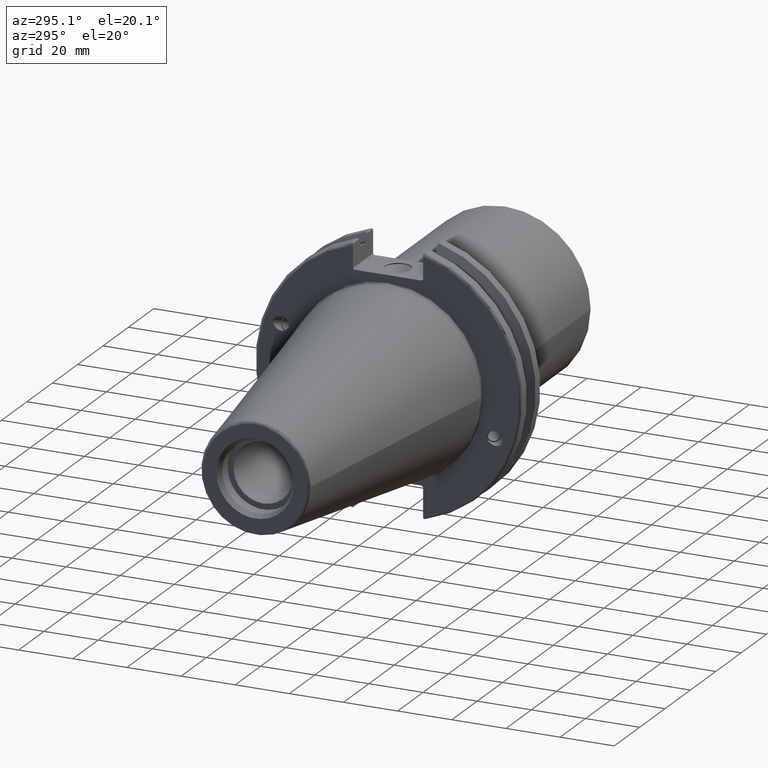
[diagram: clean part render]
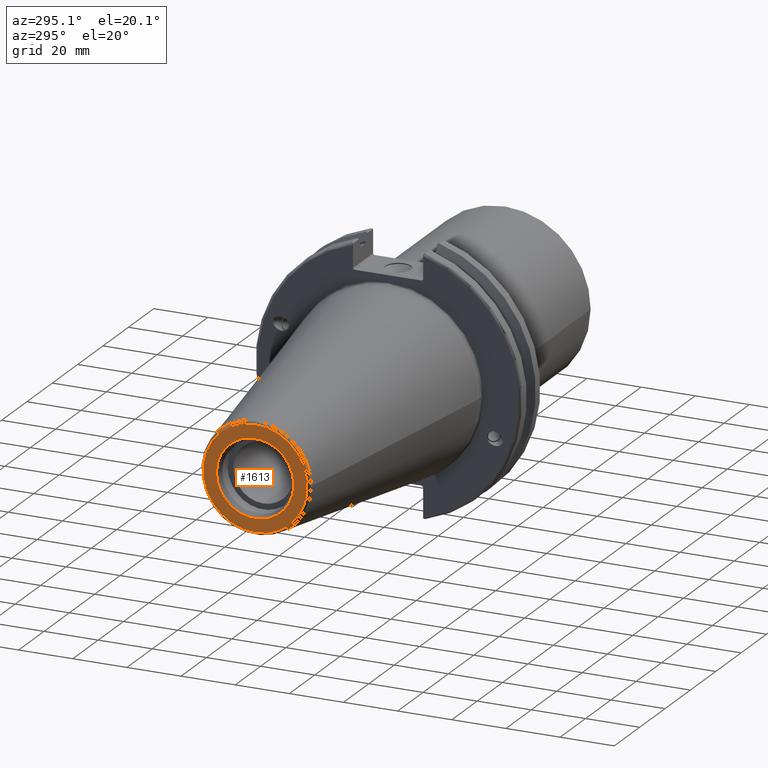
[diagram: same view with one face highlighted and labeled with its STEP entity id]
A machine part, auxiliary view. The second image highlights one B-rep face of the part: STEP entity #1613.
In plain terms, the highlighted planar face has unit normal (-1, 0, 0).
Its self-contained STEP definition (entity closure, byte-faithful):
#80=FACE_BOUND('',#298,.T.);
#105=PLANE('',#1797);
#183=FACE_OUTER_BOUND('',#297,.T.);
#297=EDGE_LOOP('',(#1391));
#298=EDGE_LOOP('',(#1392));
#631=CIRCLE('',#1796,19.2435889303637);
#632=CIRCLE('',#1798,14.2875);
#797=VERTEX_POINT('',#3307);
#798=VERTEX_POINT('',#3311);
#1013=EDGE_CURVE('',#797,#797,#631,.T.);
#1014=EDGE_CURVE('',#798,#798,#632,.T.);
#1391=ORIENTED_EDGE('',*,*,#1013,.F.);
#1392=ORIENTED_EDGE('',*,*,#1014,.T.);
#1613=ADVANCED_FACE('',(#183,#80),#105,.T.);
#1796=AXIS2_PLACEMENT_3D('',#3309,#2179,#2180);
#1797=AXIS2_PLACEMENT_3D('',#3310,#2181,#2182);
#1798=AXIS2_PLACEMENT_3D('',#3312,#2183,#2184);
#2179=DIRECTION('center_axis',(1.,0.,0.));
#2180=DIRECTION('ref_axis',(0.,-1.,1.83697019872103E-16));
#2181=DIRECTION('center_axis',(-1.,0.,0.));
#2182=DIRECTION('ref_axis',(0.,0.,1.));
#2183=DIRECTION('center_axis',(1.,0.,0.));
#2184=DIRECTION('ref_axis',(0.,0.,-1.));
#3307=CARTESIAN_POINT('',(-101.6,-2.35665995876774E-15,19.2435889303637));
#3309=CARTESIAN_POINT('Origin',(-101.6,0.,0.));
#3310=CARTESIAN_POINT('Origin',(-101.6,20.1083333333333,0.));
#3311=CARTESIAN_POINT('',(-101.6,-14.2875,-1.74971411428178E-15));
#3312=CARTESIAN_POINT('Origin',(-101.6,0.,0.));